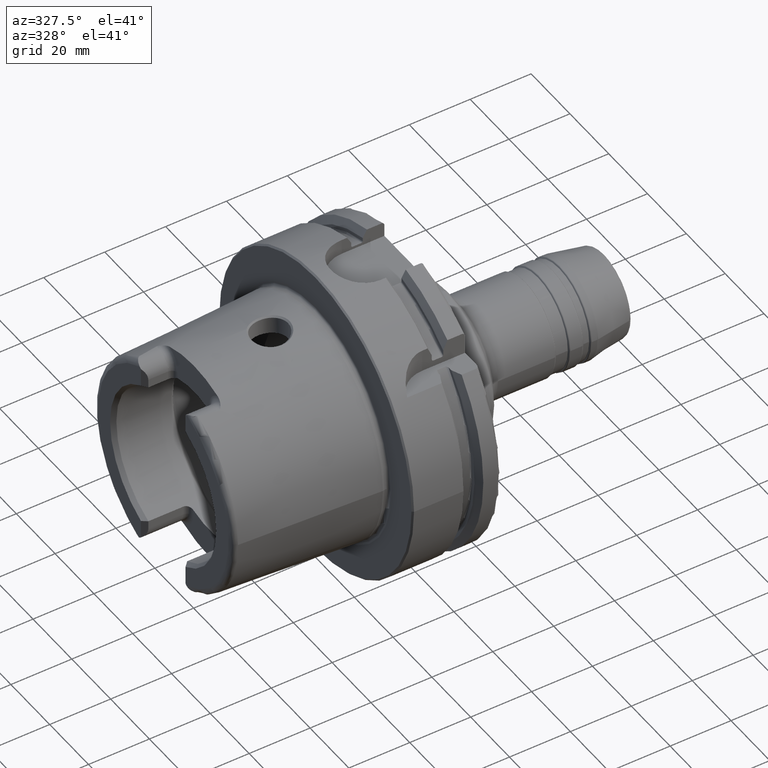
[diagram: clean part render]
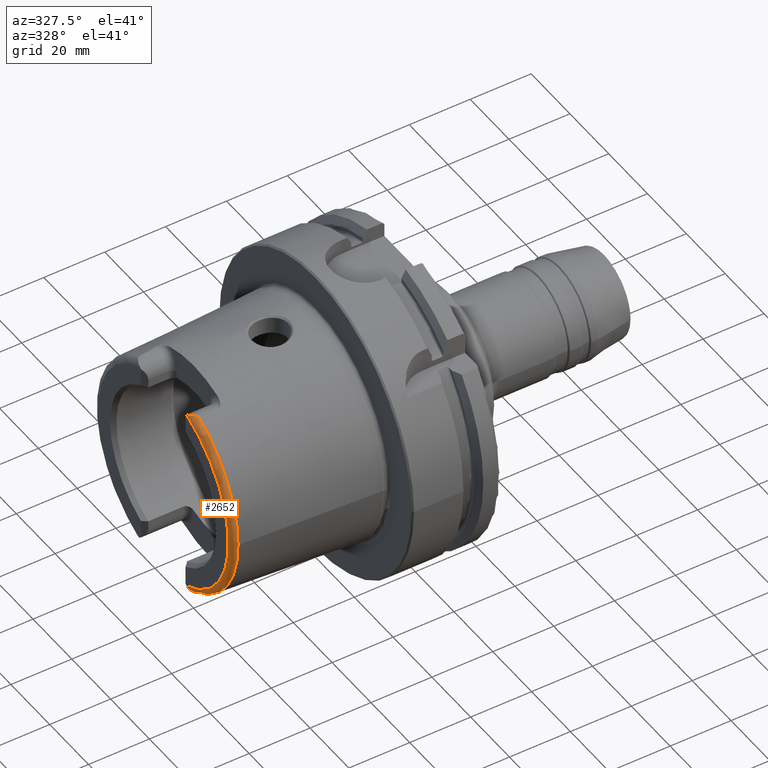
[diagram: same view with one face highlighted and labeled with its STEP entity id]
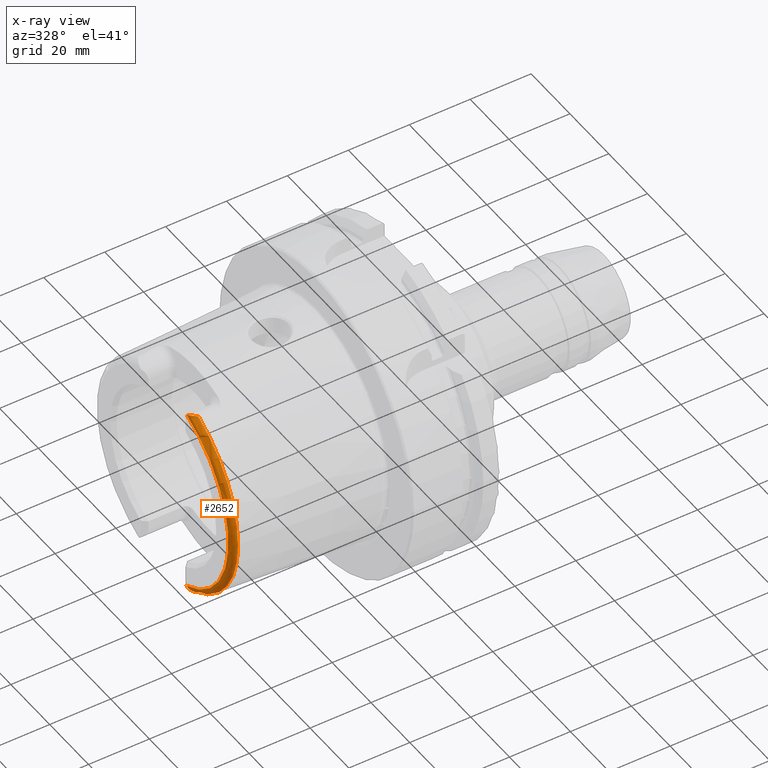
[diagram: x-ray of the same camera — body ghosted, the highlighted face saturated]
A machine part, auxiliary view. The second image highlights one B-rep face of the part: STEP entity #2652.
The next image is the same camera in x-ray: the body ghosted, the highlighted face saturated — about 0% of this face is hidden behind the body in this view.
In plain terms, the highlighted toroidal blend (fillet) surface has major radius 33.6002 mm and minor (blend) radius 2 mm.
Its self-contained STEP definition (entity closure, byte-faithful):
#34=B_SPLINE_CURVE_WITH_KNOTS('',3,(#4296,#4297,#4298,#4299,#4300,#4301,
#4302,#4303,#4304,#4305,#4306,#4307),.UNSPECIFIED.,.F.,.F.,(4,2,2,2,2,4),
(-0.330531435638015,-0.267908000768776,-0.159978118105109,-0.0786368985358203,
-0.0319888850382474,0.),.UNSPECIFIED.);
#35=B_SPLINE_CURVE_WITH_KNOTS('',3,(#4332,#4333,#4334,#4335,#4336,#4337,
#4338,#4339,#4340,#4341,#4342,#4343),.UNSPECIFIED.,.F.,.F.,(4,2,2,2,2,4),
(-0.744571126726488,-0.701342830888658,-0.656522678464695,-0.531122919946982,
-0.40678456724179,-0.320835419118985),.UNSPECIFIED.);
#540=FACE_OUTER_BOUND('',#684,.T.);
#684=EDGE_LOOP('',(#2360,#2361,#2362,#2363,#2364));
#833=CIRCLE('',#2872,35.5976786130245);
#837=CIRCLE('',#2876,35.5976786130245);
#905=CIRCLE('',#3005,33.6001839277785);
#1067=VERTEX_POINT('',#4276);
#1068=VERTEX_POINT('',#4295);
#1076=VERTEX_POINT('',#4329);
#1077=VERTEX_POINT('',#4331);
#1093=VERTEX_POINT('',#4552);
#1393=EDGE_CURVE('',#1068,#1067,#34,.T.);
#1405=EDGE_CURVE('',#1077,#1076,#35,.T.);
#1426=EDGE_CURVE('',#1093,#1067,#833,.T.);
#1438=EDGE_CURVE('',#1077,#1093,#837,.T.);
#1613=EDGE_CURVE('',#1076,#1068,#905,.T.);
#2360=ORIENTED_EDGE('',*,*,#1405,.T.);
#2361=ORIENTED_EDGE('',*,*,#1613,.T.);
#2362=ORIENTED_EDGE('',*,*,#1393,.T.);
#2363=ORIENTED_EDGE('',*,*,#1426,.F.);
#2364=ORIENTED_EDGE('',*,*,#1438,.F.);
#2536=TOROIDAL_SURFACE('',#3004,33.6001839277785,2.);
#2652=ADVANCED_FACE('',(#540),#2536,.T.);
#2872=AXIS2_PLACEMENT_3D('',#4554,#3469,#3470);
#2876=AXIS2_PLACEMENT_3D('',#4662,#3477,#3478);
#3004=AXIS2_PLACEMENT_3D('',#5561,#3791,#3792);
#3005=AXIS2_PLACEMENT_3D('',#5562,#3793,#3794);
#3469=DIRECTION('center_axis',(1.,0.,0.));
#3470=DIRECTION('ref_axis',(0.,0.,-1.));
#3477=DIRECTION('center_axis',(1.,0.,0.));
#3478=DIRECTION('ref_axis',(0.,0.,-1.));
#3791=DIRECTION('center_axis',(1.,0.,0.));
#3792=DIRECTION('ref_axis',(0.,0.,-1.));
#3793=DIRECTION('center_axis',(1.,0.,0.));
#3794=DIRECTION('ref_axis',(0.,0.,-1.));
#4276=CARTESIAN_POINT('',(-48.1000748840304,-15.0787152148571,-32.2463497175327));
#4295=CARTESIAN_POINT('',(-50.,-12.0743049948301,-31.355757348091));
#4296=CARTESIAN_POINT('Ctrl Pts',(-50.,-12.0743049948301,-31.355757348091));
#4297=CARTESIAN_POINT('Ctrl Pts',(-50.,-12.285838123051,-31.5051926299063));
#4298=CARTESIAN_POINT('Ctrl Pts',(-49.9653696826563,-12.5170331398668,-31.6430588255455));
#4299=CARTESIAN_POINT('Ctrl Pts',(-49.7810065498998,-13.1911222585012,-31.9692156023965));
#4300=CARTESIAN_POINT('Ctrl Pts',(-49.5806767805336,-13.6194685503756,-32.0969374367804));
#4301=CARTESIAN_POINT('Ctrl Pts',(-49.1716377200869,-14.2730899346346,-32.2192774131036));
#4302=CARTESIAN_POINT('Ctrl Pts',(-48.9774936618895,-14.5201969661755,-32.2395201073332));
#4303=CARTESIAN_POINT('Ctrl Pts',(-48.6675943633754,-14.8125911006811,-32.2505512851489));
#4304=CARTESIAN_POINT('Ctrl Pts',(-48.5398374959923,-14.912197389574,-32.2504544601106));
#4305=CARTESIAN_POINT('Ctrl Pts',(-48.3063803700173,-15.0305209025153,-32.2482139663407));
#4306=CARTESIAN_POINT('Ctrl Pts',(-48.2058276135777,-15.0650786147019,-32.2468774553032));
#4307=CARTESIAN_POINT('Ctrl Pts',(-48.1000748840303,-15.0787152148571,-32.2463497175327));
#4329=CARTESIAN_POINT('',(-50.,-12.0743049948301,31.355757348091));
#4331=CARTESIAN_POINT('',(-48.1000748840304,-15.0787152148571,32.2463497175327));
#4332=CARTESIAN_POINT('Ctrl Pts',(-48.1000748840303,-15.078715214857,32.2463497175327));
#4333=CARTESIAN_POINT('Ctrl Pts',(-48.2106037175751,-15.0644627457708,32.2469012894916));
#4334=CARTESIAN_POINT('Ctrl Pts',(-48.3154292138325,-15.0273539899824,32.2483385926998));
#4335=CARTESIAN_POINT('Ctrl Pts',(-48.5163157198425,-14.9224481921473,32.2501843906849));
#4336=CARTESIAN_POINT('Ctrl Pts',(-48.6121978837475,-14.8534224082597,32.2504380645671));
#4337=CARTESIAN_POINT('Ctrl Pts',(-48.9452641842069,-14.5689466462259,32.2439376039327));
#4338=CARTESIAN_POINT('Ctrl Pts',(-49.1880723127851,-14.2607780319836,32.2227822574559));
#4339=CARTESIAN_POINT('Ctrl Pts',(-49.6101150709732,-13.5547183211213,32.0774653757186));
#4340=CARTESIAN_POINT('Ctrl Pts',(-49.7793847368059,-13.1765954395989,31.957165019384));
#4341=CARTESIAN_POINT('Ctrl Pts',(-49.9574602860506,-12.5580264083439,31.6658578550016));
#4342=CARTESIAN_POINT('Ctrl Pts',(-50.,-12.3091419271059,31.5216553492714));
#4343=CARTESIAN_POINT('Ctrl Pts',(-50.,-12.0743049948301,31.355757348091));
#4552=CARTESIAN_POINT('',(-48.1000748840304,-35.5976786130245,-4.35945831705167E-15));
#4554=CARTESIAN_POINT('Origin',(-48.1000748840304,0.,0.));
#4662=CARTESIAN_POINT('Origin',(-48.1000748840304,0.,0.));
#5561=CARTESIAN_POINT('Origin',(-48.,0.,0.));
#5562=CARTESIAN_POINT('Origin',(-50.,0.,0.));